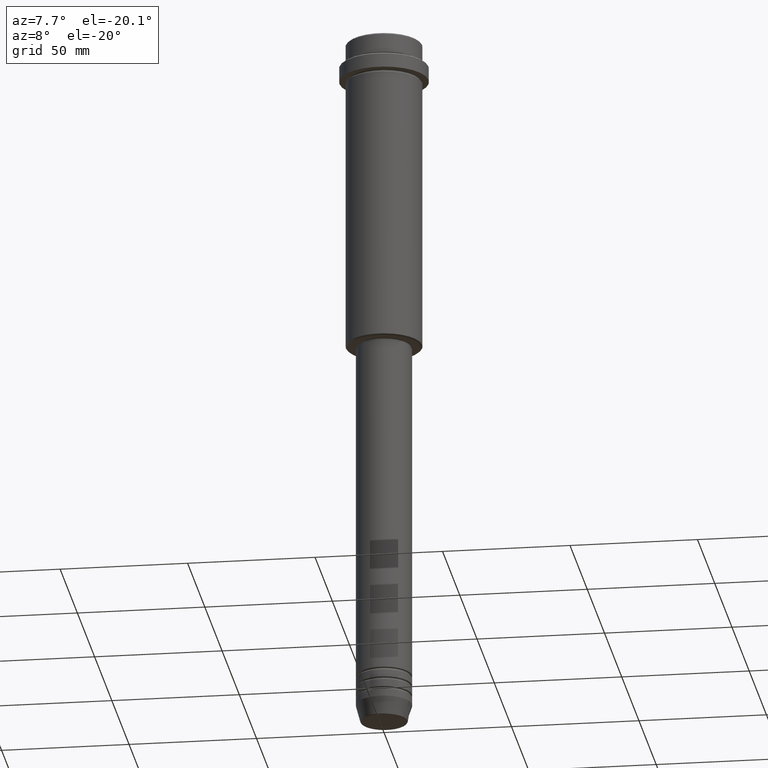
[diagram: clean part render]
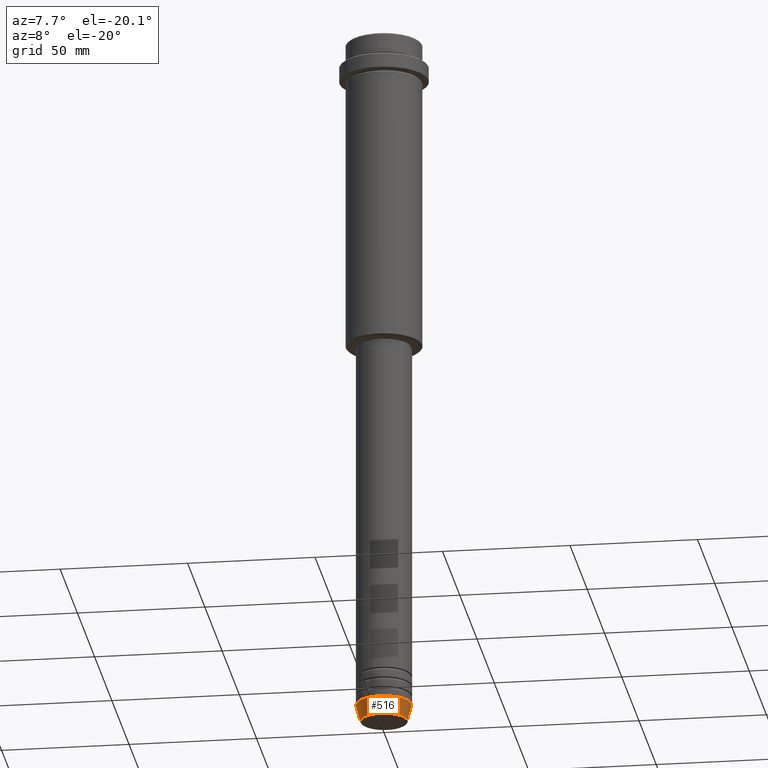
[diagram: same view with one face highlighted and labeled with its STEP entity id]
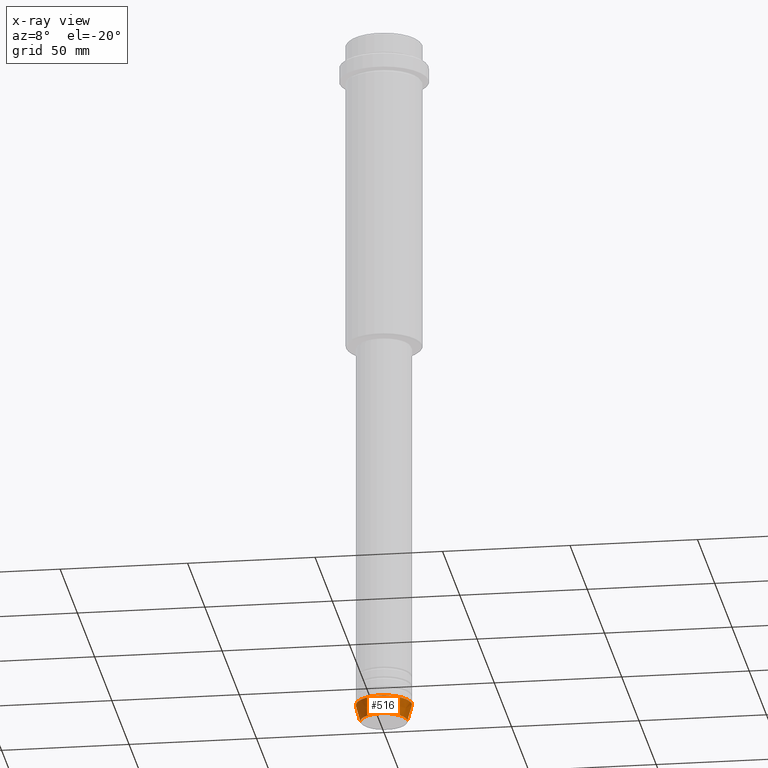
[diagram: x-ray of the same camera — body ghosted, the highlighted face saturated]
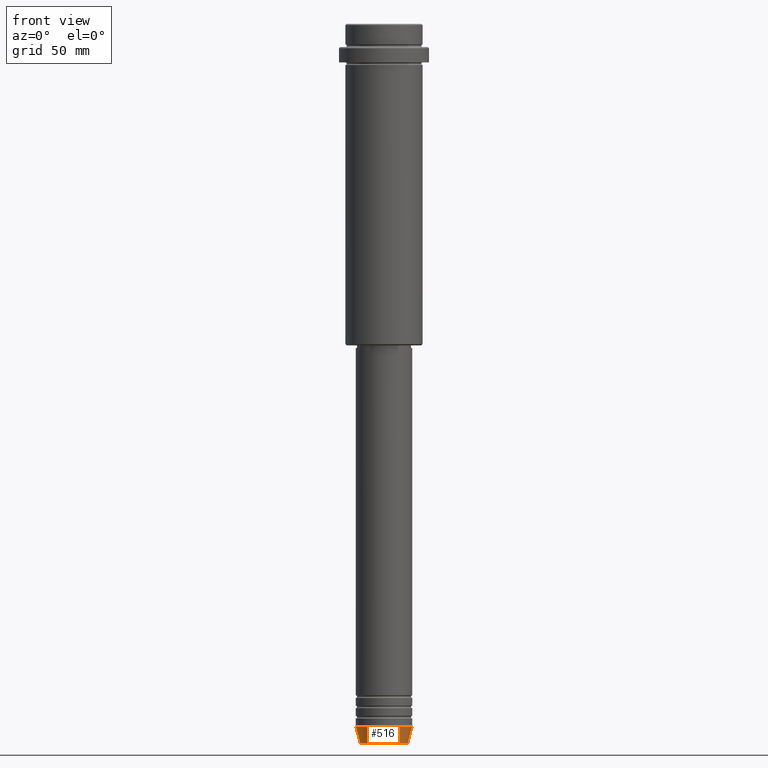
[diagram: same view with one face highlighted and labeled with its STEP entity id]
A machine part, auxiliary view. The second image highlights one B-rep face of the part: STEP entity #516.
The next image is the same camera in x-ray: the body ghosted, the highlighted face saturated — about 0% of this face is hidden behind the body in this view.
A second angle (front view) of the same face is appended — the face is thin or edge-on in the first view.
In plain terms, the highlighted conical surface has half-angle 15 deg.
Its self-contained STEP definition (entity closure, byte-faithful):
#4 = VERTEX_POINT ( 'NONE', #836 ) ;
#82 = CONICAL_SURFACE ( 'NONE', #1247, 11.00000000000000000, 0.2617993877991500740 ) ;
#86 = VERTEX_POINT ( 'NONE', #387 ) ;
#102 = AXIS2_PLACEMENT_3D ( 'NONE', #1116, #1011, #1333 ) ;
#108 = CARTESIAN_POINT ( 'NONE',  ( 11.00000000000000000, 0.000000000000000000, -273.0000000000000000 ) ) ;
#122 = EDGE_CURVE ( 'NONE', #86, #577, #753, .T. ) ;
#145 = DIRECTION ( 'NONE',  ( -0.2588190451025213501, 3.169619151431772337E-17, 0.9659258262890680902 ) ) ;
#279 = ORIENTED_EDGE ( 'NONE', *, *, #796, .T. ) ;
#344 = EDGE_LOOP ( 'NONE', ( #1274, #279, #1121, #463 ) ) ;
#379 = CIRCLE ( 'NONE', #1158, 11.00000000000000000 ) ;
#387 = CARTESIAN_POINT ( 'NONE',  ( 9.223655072137189492, 0.000000000000000000, -279.6294095225512706 ) ) ;
#445 = CARTESIAN_POINT ( 'NONE',  ( 11.00000000000000000, 0.000000000000000000, -273.0000000000000000 ) ) ;
#463 = ORIENTED_EDGE ( 'NONE', *, *, #1273, .F. ) ;
#504 = CARTESIAN_POINT ( 'NONE',  ( 0.000000000000000000, 0.000000000000000000, -273.0000000000000000 ) ) ;
#516 = ADVANCED_FACE ( 'NONE', ( #640 ), #82, .T. ) ;
#570 = CARTESIAN_POINT ( 'NONE',  ( 0.000000000000000000, 0.000000000000000000, -273.0000000000000000 ) ) ;
#577 = VERTEX_POINT ( 'NONE', #445 ) ;
#640 = FACE_OUTER_BOUND ( 'NONE', #344, .T. ) ;
#685 = LINE ( 'NONE', #1238, #810 ) ;
#751 = EDGE_CURVE ( 'NONE', #4, #1015, #685, .T. ) ;
#753 = LINE ( 'NONE', #108, #816 ) ;
#796 = EDGE_CURVE ( 'NONE', #4, #86, #1400, .T. ) ;
#810 = VECTOR ( 'NONE', #145, 1000.000000000000000 ) ;
#816 = VECTOR ( 'NONE', #1408, 1000.000000000000000 ) ;
#836 = CARTESIAN_POINT ( 'NONE',  ( -9.223655072137189492, 1.238341722557647202E-15, -279.6294095225512706 ) ) ;
#904 = DIRECTION ( 'NONE',  ( 1.000000000000000000, 0.000000000000000000, 0.000000000000000000 ) ) ;
#1011 = DIRECTION ( 'NONE',  ( -0.000000000000000000, -0.000000000000000000, 1.000000000000000000 ) ) ;
#1014 = DIRECTION ( 'NONE',  ( -0.000000000000000000, -0.000000000000000000, 1.000000000000000000 ) ) ;
#1015 = VERTEX_POINT ( 'NONE', #1285 ) ;
#1116 = CARTESIAN_POINT ( 'NONE',  ( 0.000000000000000000, 0.000000000000000000, -279.6294095225512706 ) ) ;
#1121 = ORIENTED_EDGE ( 'NONE', *, *, #122, .T. ) ;
#1158 = AXIS2_PLACEMENT_3D ( 'NONE', #570, #1014, #904 ) ;
#1173 = DIRECTION ( 'NONE',  ( -0.000000000000000000, -0.000000000000000000, 1.000000000000000000 ) ) ;
#1238 = CARTESIAN_POINT ( 'NONE',  ( -11.00000000000000000, 1.347111479062088405E-15, -273.0000000000000000 ) ) ;
#1247 = AXIS2_PLACEMENT_3D ( 'NONE', #504, #1173, #1383 ) ;
#1273 = EDGE_CURVE ( 'NONE', #1015, #577, #379, .T. ) ;
#1274 = ORIENTED_EDGE ( 'NONE', *, *, #751, .F. ) ;
#1285 = CARTESIAN_POINT ( 'NONE',  ( -11.00000000000000000, 1.347111479062088405E-15, -273.0000000000000000 ) ) ;
#1333 = DIRECTION ( 'NONE',  ( 1.000000000000000000, 0.000000000000000000, 0.000000000000000000 ) ) ;
#1383 = DIRECTION ( 'NONE',  ( 1.000000000000000000, 0.000000000000000000, 0.000000000000000000 ) ) ;
#1400 = CIRCLE ( 'NONE', #102, 9.223655072137189492 ) ;
#1408 = DIRECTION ( 'NONE',  ( 0.2588190451025213501, 0.000000000000000000, 0.9659258262890680902 ) ) ;